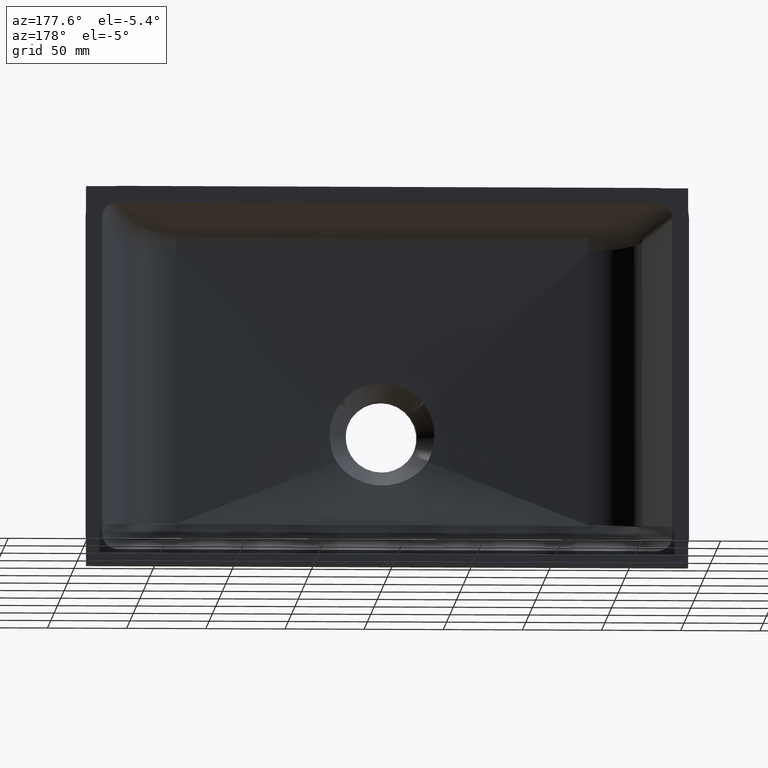
[diagram: clean part render]
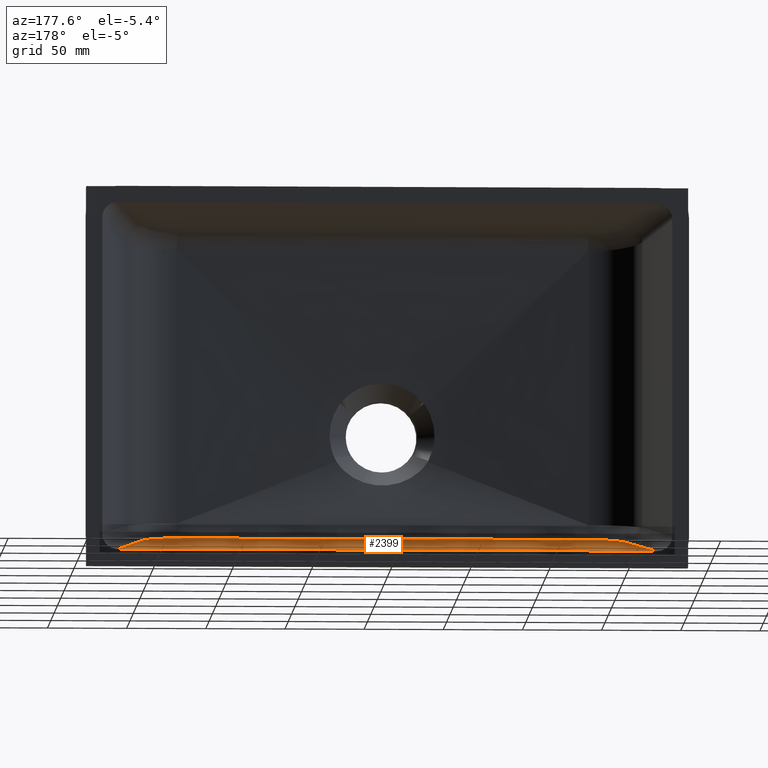
[diagram: same view with one face highlighted and labeled with its STEP entity id]
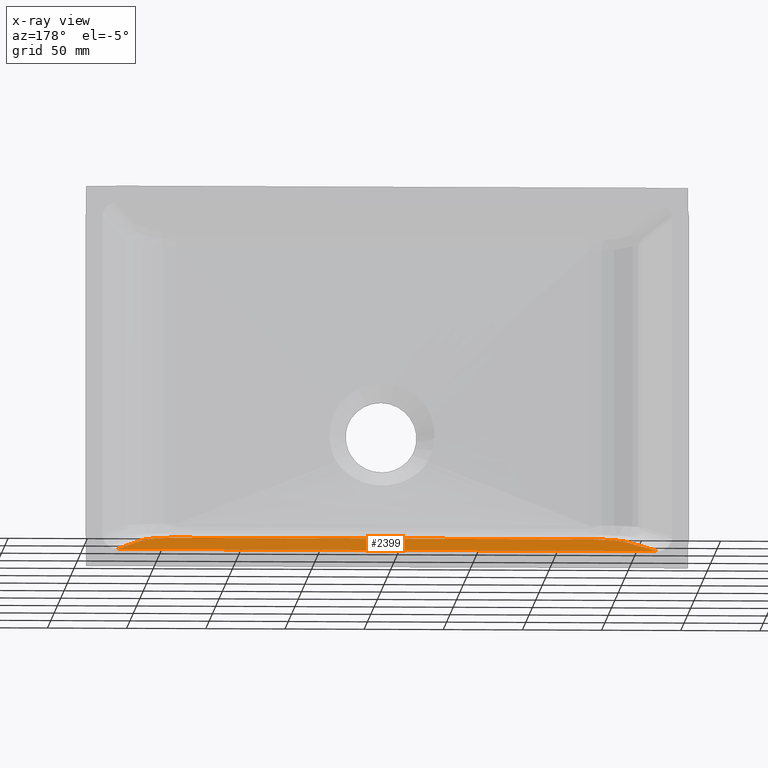
[diagram: x-ray of the same camera — body ghosted, the highlighted face saturated]
A machine part, auxiliary view. The second image highlights one B-rep face of the part: STEP entity #2399.
The next image is the same camera in x-ray: the body ghosted, the highlighted face saturated — about 0% of this face is hidden behind the body in this view.
In plain terms, the highlighted planar face has unit normal (0, -0.2013, -0.9795).
Its self-contained STEP definition (entity closure, byte-faithful):
#53 = ORIENTED_EDGE ( 'NONE', *, *, #5678, .T. ) ;
#112 = CARTESIAN_POINT ( 'NONE',  ( -129.9907418994457100, -65.01274298349513000, -96.64121719517227400 ) ) ;
#179 = CARTESIAN_POINT ( 'NONE',  ( -153.6422290650791100, -48.11256735528741800, -100.1138560228861700 ) ) ;
#317 = LINE ( 'NONE', #5237, #6295 ) ;
#480 = LINE ( 'NONE', #5588, #4767 ) ;
#509 = CARTESIAN_POINT ( 'NONE',  ( -150.0574483035369400, -58.58012717899033800, -97.96298756596087300 ) ) ;
#1096 = VERTEX_POINT ( 'NONE', #7304 ) ;
#1312 = CARTESIAN_POINT ( 'NONE',  ( -141.0551199556729200, -65.01274298349513000, -96.64121719517224600 ) ) ;
#1330 = DIRECTION ( 'NONE',  ( -0.3180393894549253300, -0.9286750172083819700, 0.1908236336729543000 ) ) ;
#1354 = EDGE_LOOP ( 'NONE', ( #53, #7311, #6762, #3253, #4194, #3701 ) ) ;
#1438 = CARTESIAN_POINT ( 'NONE',  ( 129.9907418994457700, -65.01274298349513000, -96.64121719517226000 ) ) ;
#1464 = CARTESIAN_POINT ( 'NONE',  ( 134.7049165952851700, -103.4095197670860000, -88.75146854100978500 ) ) ;
#1694 = EDGE_CURVE ( 'NONE', #7432, #2730, #480, .T. ) ;
#1865 = LINE ( 'NONE', #2949, #3007 ) ;
#1986 = DIRECTION ( 'NONE',  ( 1.000000000000000000, 0.0000000000000000000, 0.0000000000000000000 ) ) ;
#2029 = EDGE_CURVE ( 'NONE', #3374, #2359, #317, .T. ) ;
#2034 = DIRECTION ( 'NONE',  ( 0.0000000000000000000, -0.2012742983495134600, -0.9795349186343033100 ) ) ;
#2055 = CARTESIAN_POINT ( 'NONE',  ( -180.0000000000000000, 0.0000000000000000000, -109.9999999999999700 ) ) ;
#2159 =( BOUNDED_CURVE ( )  B_SPLINE_CURVE ( 3, ( #6992, #6964, #6914, #6866 ),
 .UNSPECIFIED., .F., .T. ) 
 B_SPLINE_CURVE_WITH_KNOTS ( ( 4, 4 ),
 ( 3.391964076895551700E-016, 1.240849234648344400 ),
 .UNSPECIFIED. ) 
 CURVE ( )  GEOMETRIC_REPRESENTATION_ITEM ( )  RATIONAL_B_SPLINE_CURVE ( ( 1.000000000000000000, 0.8757544438024940100, 0.8757544438024940100, 1.000000000000000000 ) ) 
 REPRESENTATION_ITEM ( '' )  );
#2190 = VERTEX_POINT ( 'NONE', #5213 ) ;
#2359 = VERTEX_POINT ( 'NONE', #3570 ) ;
#2399 = ADVANCED_FACE ( 'NONE', ( #4409 ), #3412, .F. ) ;
#2491 = EDGE_CURVE ( 'NONE', #2190, #1096, #2844, .T. ) ;
#2730 = VERTEX_POINT ( 'NONE', #112 ) ;
#2844 = LINE ( 'NONE', #1464, #7074 ) ;
#2918 = DIRECTION ( 'NONE',  ( -1.000000000000000000, -0.0000000000000000000, -0.0000000000000000000 ) ) ;
#2949 = CARTESIAN_POINT ( 'NONE',  ( -180.0000000000000000, 0.0000000000000000000, -109.9999999999999700 ) ) ;
#3007 = VECTOR ( 'NONE', #2918, 1000.000000000000000 ) ;
#3253 = ORIENTED_EDGE ( 'NONE', *, *, #2029, .F. ) ;
#3374 = VERTEX_POINT ( 'NONE', #7179 ) ;
#3412 = PLANE ( 'NONE',  #3466 ) ;
#3466 = AXIS2_PLACEMENT_3D ( 'NONE', #2055, #2034, #1986 ) ;
#3570 = CARTESIAN_POINT ( 'NONE',  ( -170.1191356936022000, 0.0000000000000000000, -109.9999999999999700 ) ) ;
#3701 = ORIENTED_EDGE ( 'NONE', *, *, #1694, .F. ) ;
#3754 =( BOUNDED_CURVE ( )  B_SPLINE_CURVE ( 3, ( #179, #509, #1312, #7110 ),
 .UNSPECIFIED., .F., .T. ) 
 B_SPLINE_CURVE_WITH_KNOTS ( ( 4, 4 ),
 ( 1.900743418941452900, 3.141592653589793100 ),
 .UNSPECIFIED. ) 
 CURVE ( )  GEOMETRIC_REPRESENTATION_ITEM ( )  RATIONAL_B_SPLINE_CURVE ( ( 1.000000000000000000, 0.8757544438024945600, 0.8757544438024945600, 1.000000000000000000 ) ) 
 REPRESENTATION_ITEM ( '' )  );
#4194 = ORIENTED_EDGE ( 'NONE', *, *, #4561, .T. ) ;
#4217 = EDGE_CURVE ( 'NONE', #2190, #2359, #1865, .T. ) ;
#4409 = FACE_OUTER_BOUND ( 'NONE', #1354, .T. ) ;
#4561 = EDGE_CURVE ( 'NONE', #3374, #2730, #3754, .T. ) ;
#4767 = VECTOR ( 'NONE', #6912, 1000.000000000000000 ) ;
#5196 = DIRECTION ( 'NONE',  ( -0.3180393894549258200, 0.9286750172083817500, -0.1908236336729542700 ) ) ;
#5213 = CARTESIAN_POINT ( 'NONE',  ( 170.1191356936023200, 0.0000000000000000000, -109.9999999999999700 ) ) ;
#5237 = CARTESIAN_POINT ( 'NONE',  ( -171.1185757634353000, 2.918365003912601000, -110.5996640418998100 ) ) ;
#5588 = CARTESIAN_POINT ( 'NONE',  ( -155.0000000000000000, -65.01274298349513000, -96.64121719517227400 ) ) ;
#5678 = EDGE_CURVE ( 'NONE', #7432, #1096, #2159, .T. ) ;
#6295 = VECTOR ( 'NONE', #5196, 1000.000000000000100 ) ;
#6762 = ORIENTED_EDGE ( 'NONE', *, *, #4217, .T. ) ;
#6866 = CARTESIAN_POINT ( 'NONE',  ( 153.6422290650791600, -48.11256735528738200, -100.1138560228861700 ) ) ;
#6912 = DIRECTION ( 'NONE',  ( -1.000000000000000000, 0.0000000000000000000, 0.0000000000000000000 ) ) ;
#6914 = CARTESIAN_POINT ( 'NONE',  ( 150.0574483035370000, -58.58012717899033100, -97.96298756596091600 ) ) ;
#6964 = CARTESIAN_POINT ( 'NONE',  ( 141.0551199556729500, -65.01274298349515800, -96.64121719517226000 ) ) ;
#6992 = CARTESIAN_POINT ( 'NONE',  ( 129.9907418994457700, -65.01274298349513000, -96.64121719517226000 ) ) ;
#7074 = VECTOR ( 'NONE', #1330, 999.9999999999998900 ) ;
#7110 = CARTESIAN_POINT ( 'NONE',  ( -129.9907418994457100, -65.01274298349513000, -96.64121719517227400 ) ) ;
#7179 = CARTESIAN_POINT ( 'NONE',  ( -153.6422290650791100, -48.11256735528741800, -100.1138560228861700 ) ) ;
#7304 = CARTESIAN_POINT ( 'NONE',  ( 153.6422290650791600, -48.11256735528738200, -100.1138560228861700 ) ) ;
#7311 = ORIENTED_EDGE ( 'NONE', *, *, #2491, .F. ) ;
#7432 = VERTEX_POINT ( 'NONE', #1438 ) ;